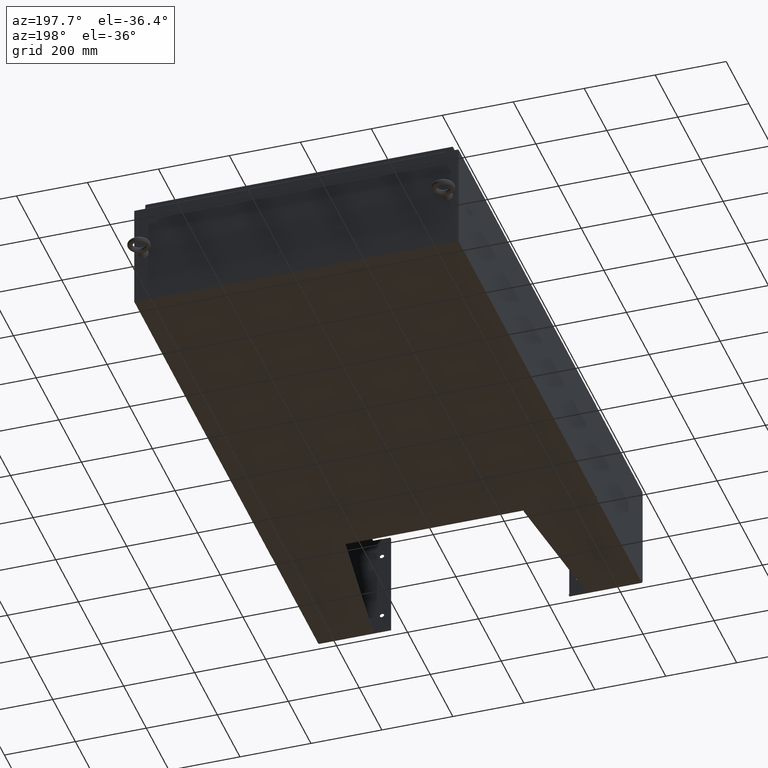
[diagram: clean part render]
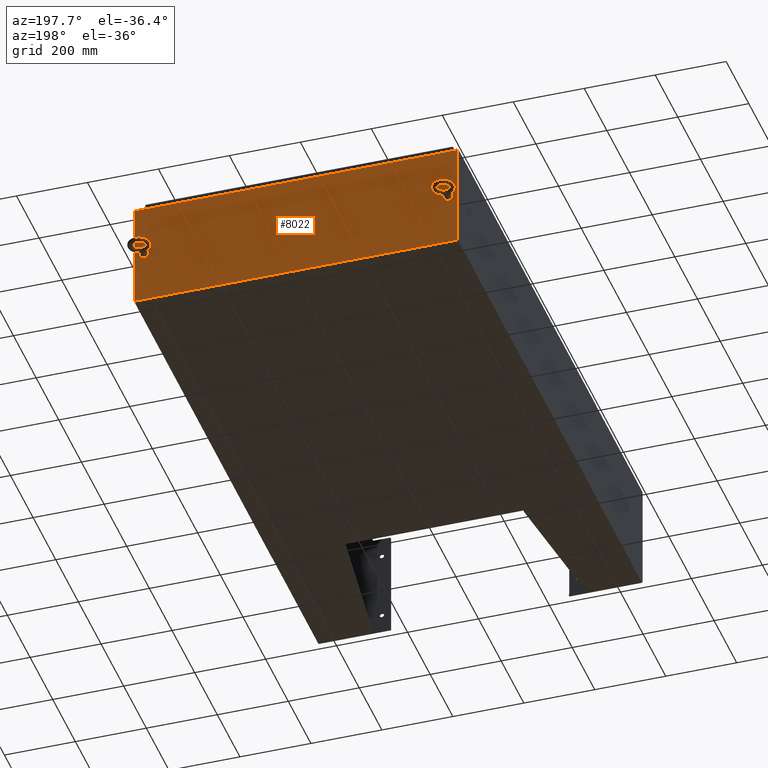
[diagram: same view with one face highlighted and labeled with its STEP entity id]
A machine part, auxiliary view. The second image highlights one B-rep face of the part: STEP entity #8022.
In plain terms, the highlighted planar face has unit normal (0, -1, 0).
Its self-contained STEP definition (entity closure, byte-faithful):
#133 = VERTEX_POINT ( 'NONE', #3071 ) ;
#221 = VERTEX_POINT ( 'NONE', #22784 ) ;
#503 = LINE ( 'NONE', #13415, #32140 ) ;
#933 = DIRECTION ( 'NONE',  ( 1.000000000000000000, 0.0000000000000000000, 3.048036009064577000E-017 ) ) ;
#975 = ORIENTED_EDGE ( 'NONE', *, *, #18891, .F. ) ;
#2045 = LINE ( 'NONE', #3812, #11806 ) ;
#2135 = ORIENTED_EDGE ( 'NONE', *, *, #32448, .T. ) ;
#2281 = PLANE ( 'NONE',  #48582 ) ;
#2538 = LINE ( 'NONE', #43122, #34117 ) ;
#2623 = CIRCLE ( 'NONE', #7344, 0.3750000000000008300 ) ;
#2896 = CARTESIAN_POINT ( 'NONE',  ( -16.88529999999999700, 0.0000000000000000000, 0.3750000000000007800 ) ) ;
#3071 = CARTESIAN_POINT ( 'NONE',  ( 16.67455000000000400, 0.0000000000000000000, 5.874949999999999200 ) ) ;
#3076 = ORIENTED_EDGE ( 'NONE', *, *, #20919, .F. ) ;
#3209 = CIRCLE ( 'NONE', #40793, 0.3750000000000008300 ) ;
#3812 = CARTESIAN_POINT ( 'NONE',  ( -17.92529999999999600, 0.0000000000000000000, 5.925299999999999100 ) ) ;
#4420 = LINE ( 'NONE', #53273, #14094 ) ;
#4456 = VERTEX_POINT ( 'NONE', #8517 ) ;
#4534 = ORIENTED_EDGE ( 'NONE', *, *, #15151, .T. ) ;
#4956 = ORIENTED_EDGE ( 'NONE', *, *, #32201, .T. ) ;
#5405 = CIRCLE ( 'NONE', #9941, 0.3750000000000008300 ) ;
#6205 = ORIENTED_EDGE ( 'NONE', *, *, #46503, .F. ) ;
#6882 = DIRECTION ( 'NONE',  ( 0.0000000000000000000, 0.0000000000000000000, -1.000000000000000000 ) ) ;
#7344 = AXIS2_PLACEMENT_3D ( 'NONE', #23861, #30843, #47514 ) ;
#7450 = VERTEX_POINT ( 'NONE', #2896 ) ;
#7729 = CARTESIAN_POINT ( 'NONE',  ( -16.63720000000000000, 3.756290991288361700E-016, 5.912299999999999200 ) ) ;
#8022 = ADVANCED_FACE ( 'NONE', ( #31562, #42447, #20605 ), #2281, .F. ) ;
#8517 = CARTESIAN_POINT ( 'NONE',  ( 16.88530000000000100, 0.0000000000000000000, -0.3750000000000008300 ) ) ;
#8636 = EDGE_CURVE ( 'NONE', #52625, #44970, #503, .T. ) ;
#9380 = VECTOR ( 'NONE', #37158, 39.37007874015748100 ) ;
#9941 = AXIS2_PLACEMENT_3D ( 'NONE', #36114, #39809, #31290 ) ;
#10289 = CARTESIAN_POINT ( 'NONE',  ( -17.92529999999999600, 0.0000000000000000000, -5.925300000000000000 ) ) ;
#10447 = CARTESIAN_POINT ( 'NONE',  ( 0.0000000000000000000, 0.0000000000000000000, 0.0000000000000000000 ) ) ;
#11806 = VECTOR ( 'NONE', #21434, 39.37007874015748100 ) ;
#13281 = CARTESIAN_POINT ( 'NONE',  ( 16.63720000000000400, 0.0000000000000000000, 5.912299999999999200 ) ) ;
#13415 = CARTESIAN_POINT ( 'NONE',  ( -17.92529999999999600, 0.0000000000000000000, 5.925299999999999100 ) ) ;
#13554 = DIRECTION ( 'NONE',  ( 0.0000000000000000000, 0.0000000000000000000, -1.000000000000000000 ) ) ;
#14094 = VECTOR ( 'NONE', #46203, 39.37007874015748100 ) ;
#14697 = ORIENTED_EDGE ( 'NONE', *, *, #17490, .T. ) ;
#14738 = DIRECTION ( 'NONE',  ( 0.0000000000000000000, -0.0000000000000000000, -1.000000000000000000 ) ) ;
#14771 = DIRECTION ( 'NONE',  ( 0.0000000000000000000, 0.0000000000000000000, -1.000000000000000000 ) ) ;
#15082 = DIRECTION ( 'NONE',  ( 0.0000000000000000000, 1.000000000000000000, 0.0000000000000000000 ) ) ;
#15151 = EDGE_CURVE ( 'NONE', #221, #31714, #2538, .T. ) ;
#15259 = CARTESIAN_POINT ( 'NONE',  ( 16.88530000000000100, 0.0000000000000000000, 0.0000000000000000000 ) ) ;
#15856 = EDGE_CURVE ( 'NONE', #47066, #31296, #4420, .T. ) ;
#16284 = VERTEX_POINT ( 'NONE', #43219 ) ;
#17490 = EDGE_CURVE ( 'NONE', #16284, #221, #2045, .T. ) ;
#18081 = DIRECTION ( 'NONE',  ( -0.0000000000000000000, 1.000000000000000000, -0.0000000000000000000 ) ) ;
#18212 = EDGE_CURVE ( 'NONE', #27004, #7450, #2623, .T. ) ;
#18891 = EDGE_CURVE ( 'NONE', #7450, #27004, #3209, .T. ) ;
#19072 = ORIENTED_EDGE ( 'NONE', *, *, #26757, .F. ) ;
#19138 = CARTESIAN_POINT ( 'NONE',  ( -16.88529999999999700, 0.0000000000000000000, -5.533055694631047000E-017 ) ) ;
#19479 = ORIENTED_EDGE ( 'NONE', *, *, #15856, .F. ) ;
#20342 = LINE ( 'NONE', #10289, #53165 ) ;
#20605 = FACE_OUTER_BOUND ( 'NONE', #26077, .T. ) ;
#20680 = EDGE_CURVE ( 'NONE', #4456, #32139, #5405, .T. ) ;
#20919 = EDGE_CURVE ( 'NONE', #133, #47066, #51114, .T. ) ;
#21434 = DIRECTION ( 'NONE',  ( 1.000000000000000000, 0.0000000000000000000, 3.048036009064577000E-017 ) ) ;
#22694 = ORIENTED_EDGE ( 'NONE', *, *, #18212, .F. ) ;
#22784 = CARTESIAN_POINT ( 'NONE',  ( 17.92530000000000400, 0.0000000000000000000, 5.925300000000000000 ) ) ;
#22935 = DIRECTION ( 'NONE',  ( -0.0000000000000000000, -0.0000000000000000000, 1.000000000000000000 ) ) ;
#23105 = CARTESIAN_POINT ( 'NONE',  ( 16.63720000000000400, 0.0000000000000000000, 5.874949999999999200 ) ) ;
#23344 = CARTESIAN_POINT ( 'NONE',  ( -16.65587499999999800, 0.0000000000000000000, 5.874949999999999200 ) ) ;
#23861 = CARTESIAN_POINT ( 'NONE',  ( -16.88529999999999700, 0.0000000000000000000, -5.533055694631047000E-017 ) ) ;
#24729 = CARTESIAN_POINT ( 'NONE',  ( -16.67455000000000000, 0.0000000000000000000, 5.925299999999999100 ) ) ;
#25211 = EDGE_CURVE ( 'NONE', #33252, #39876, #44189, .T. ) ;
#25493 = CARTESIAN_POINT ( 'NONE',  ( -16.63720000000000000, -0.0000000000000000000, 5.874949999999999200 ) ) ;
#25730 = DIRECTION ( 'NONE',  ( 0.0000000000000000000, 0.0000000000000000000, 1.000000000000000000 ) ) ;
#25983 = EDGE_CURVE ( 'NONE', #32139, #4456, #39596, .T. ) ;
#26070 = ORIENTED_EDGE ( 'NONE', *, *, #25983, .F. ) ;
#26077 = EDGE_LOOP ( 'NONE', ( #30883, #6205, #34820, #2135, #19479, #3076, #19072, #14697, #4534, #52782, #4956, #42420 ) ) ;
#26737 = CARTESIAN_POINT ( 'NONE',  ( -16.63720000000000000, -0.0000000000000000000, 0.0000000000000000000 ) ) ;
#26757 = EDGE_CURVE ( 'NONE', #16284, #133, #46052, .T. ) ;
#27004 = VERTEX_POINT ( 'NONE', #31224 ) ;
#27486 = DIRECTION ( 'NONE',  ( 0.0000000000000000000, 0.0000000000000000000, -1.000000000000000000 ) ) ;
#27513 = AXIS2_PLACEMENT_3D ( 'NONE', #48488, #18081, #14771 ) ;
#27995 = EDGE_LOOP ( 'NONE', ( #975, #22694 ) ) ;
#28669 = VERTEX_POINT ( 'NONE', #31589 ) ;
#29632 = DIRECTION ( 'NONE',  ( 0.0000000000000000000, 1.000000000000000000, 0.0000000000000000000 ) ) ;
#30361 = VERTEX_POINT ( 'NONE', #47739 ) ;
#30837 = CARTESIAN_POINT ( 'NONE',  ( 16.88530000000000100, 0.0000000000000000000, 0.3750000000000008300 ) ) ;
#30843 = DIRECTION ( 'NONE',  ( 0.0000000000000000000, 1.000000000000000000, 0.0000000000000000000 ) ) ;
#30850 = CARTESIAN_POINT ( 'NONE',  ( -17.92529999999999600, 0.0000000000000000000, 5.925299999999999100 ) ) ;
#30883 = ORIENTED_EDGE ( 'NONE', *, *, #53075, .F. ) ;
#31224 = CARTESIAN_POINT ( 'NONE',  ( -16.88529999999999700, 0.0000000000000000000, -0.3750000000000009400 ) ) ;
#31290 = DIRECTION ( 'NONE',  ( 0.0000000000000000000, 0.0000000000000000000, 1.000000000000000000 ) ) ;
#31296 = VERTEX_POINT ( 'NONE', #13281 ) ;
#31562 = FACE_BOUND ( 'NONE', #47501, .T. ) ;
#31589 = CARTESIAN_POINT ( 'NONE',  ( -17.92529999999999600, 0.0000000000000000000, -5.925300000000000000 ) ) ;
#31714 = VERTEX_POINT ( 'NONE', #41447 ) ;
#32139 = VERTEX_POINT ( 'NONE', #30837 ) ;
#32140 = VECTOR ( 'NONE', #933, 39.37007874015748100 ) ;
#32201 = EDGE_CURVE ( 'NONE', #28669, #52625, #50936, .T. ) ;
#32292 = VECTOR ( 'NONE', #44639, 39.37007874015748100 ) ;
#32448 = EDGE_CURVE ( 'NONE', #33252, #31296, #43187, .T. ) ;
#33252 = VERTEX_POINT ( 'NONE', #7729 ) ;
#33848 = CARTESIAN_POINT ( 'NONE',  ( -16.67455000000000000, -0.0000000000000000000, 0.0000000000000000000 ) ) ;
#34117 = VECTOR ( 'NONE', #13554, 39.37007874015748100 ) ;
#34820 = ORIENTED_EDGE ( 'NONE', *, *, #25211, .F. ) ;
#35956 = CIRCLE ( 'NONE', #40798, 0.01867499999999949400 ) ;
#36114 = CARTESIAN_POINT ( 'NONE',  ( 16.88530000000000100, 0.0000000000000000000, 0.0000000000000000000 ) ) ;
#37158 = DIRECTION ( 'NONE',  ( -8.681145560799821800E-014, 0.0000000000000000000, -1.000000000000000000 ) ) ;
#37522 = DIRECTION ( 'NONE',  ( 0.0000000000000000000, 0.0000000000000000000, 1.000000000000000000 ) ) ;
#39054 = DIRECTION ( 'NONE',  ( -1.000000000000000000, -0.0000000000000000000, -0.0000000000000000000 ) ) ;
#39360 = DIRECTION ( 'NONE',  ( 0.0000000000000000000, -1.000000000000000000, 0.0000000000000000000 ) ) ;
#39596 = CIRCLE ( 'NONE', #44466, 0.3750000000000008300 ) ;
#39809 = DIRECTION ( 'NONE',  ( 0.0000000000000000000, 1.000000000000000000, 0.0000000000000000000 ) ) ;
#39876 = VERTEX_POINT ( 'NONE', #25493 ) ;
#39976 = VECTOR ( 'NONE', #22935, 39.37007874015748100 ) ;
#40793 = AXIS2_PLACEMENT_3D ( 'NONE', #19138, #29632, #41379 ) ;
#40798 = AXIS2_PLACEMENT_3D ( 'NONE', #23344, #52124, #27486 ) ;
#41379 = DIRECTION ( 'NONE',  ( 0.0000000000000000000, 0.0000000000000000000, 1.000000000000000000 ) ) ;
#41447 = CARTESIAN_POINT ( 'NONE',  ( 17.92530000000000400, 0.0000000000000000000, -5.925300000000000000 ) ) ;
#42031 = EDGE_CURVE ( 'NONE', #31714, #28669, #20342, .T. ) ;
#42420 = ORIENTED_EDGE ( 'NONE', *, *, #8636, .T. ) ;
#42447 = FACE_BOUND ( 'NONE', #27995, .T. ) ;
#42895 = VECTOR ( 'NONE', #6882, 39.37007874015748100 ) ;
#43122 = CARTESIAN_POINT ( 'NONE',  ( 17.92530000000000400, 0.0000000000000000000, 5.925300000000000000 ) ) ;
#43187 = LINE ( 'NONE', #48633, #32292 ) ;
#43219 = CARTESIAN_POINT ( 'NONE',  ( 16.67455000000000700, 0.0000000000000000000, 5.925300000000000000 ) ) ;
#44189 = LINE ( 'NONE', #26737, #42895 ) ;
#44466 = AXIS2_PLACEMENT_3D ( 'NONE', #15259, #15082, #37522 ) ;
#44639 = DIRECTION ( 'NONE',  ( 1.000000000000000000, 0.0000000000000000000, 0.0000000000000000000 ) ) ;
#44970 = VERTEX_POINT ( 'NONE', #24729 ) ;
#45198 = ORIENTED_EDGE ( 'NONE', *, *, #20680, .F. ) ;
#46052 = LINE ( 'NONE', #48181, #9380 ) ;
#46203 = DIRECTION ( 'NONE',  ( 0.0000000000000000000, 0.0000000000000000000, 1.000000000000000000 ) ) ;
#46236 = VECTOR ( 'NONE', #25730, 39.37007874015748100 ) ;
#46503 = EDGE_CURVE ( 'NONE', #39876, #30361, #35956, .T. ) ;
#47066 = VERTEX_POINT ( 'NONE', #23105 ) ;
#47501 = EDGE_LOOP ( 'NONE', ( #26070, #45198 ) ) ;
#47514 = DIRECTION ( 'NONE',  ( 0.0000000000000000000, 0.0000000000000000000, 1.000000000000000000 ) ) ;
#47550 = CARTESIAN_POINT ( 'NONE',  ( -17.92529999999999600, 0.0000000000000000000, 5.925299999999999100 ) ) ;
#47562 = LINE ( 'NONE', #33848, #46236 ) ;
#47739 = CARTESIAN_POINT ( 'NONE',  ( -16.67455000000000000, 0.0000000000000000000, 5.874949999999999200 ) ) ;
#48181 = CARTESIAN_POINT ( 'NONE',  ( 16.67454999999949500, -0.0000000000000000000, -1.447541957108302900E-012 ) ) ;
#48488 = CARTESIAN_POINT ( 'NONE',  ( 16.65587500000000500, 0.0000000000000000000, 5.874949999999999200 ) ) ;
#48582 = AXIS2_PLACEMENT_3D ( 'NONE', #10447, #39360, #14738 ) ;
#48633 = CARTESIAN_POINT ( 'NONE',  ( -16.63720000000000000, 3.756290991288361700E-016, 5.912299999999999200 ) ) ;
#50936 = LINE ( 'NONE', #47550, #39976 ) ;
#51114 = CIRCLE ( 'NONE', #27513, 0.01867499999999949400 ) ;
#52124 = DIRECTION ( 'NONE',  ( -0.0000000000000000000, 1.000000000000000000, -0.0000000000000000000 ) ) ;
#52625 = VERTEX_POINT ( 'NONE', #30850 ) ;
#52782 = ORIENTED_EDGE ( 'NONE', *, *, #42031, .T. ) ;
#53075 = EDGE_CURVE ( 'NONE', #30361, #44970, #47562, .T. ) ;
#53165 = VECTOR ( 'NONE', #39054, 39.37007874015748100 ) ;
#53273 = CARTESIAN_POINT ( 'NONE',  ( 16.63720000000000400, 0.0000000000000000000, 0.0000000000000000000 ) ) ;